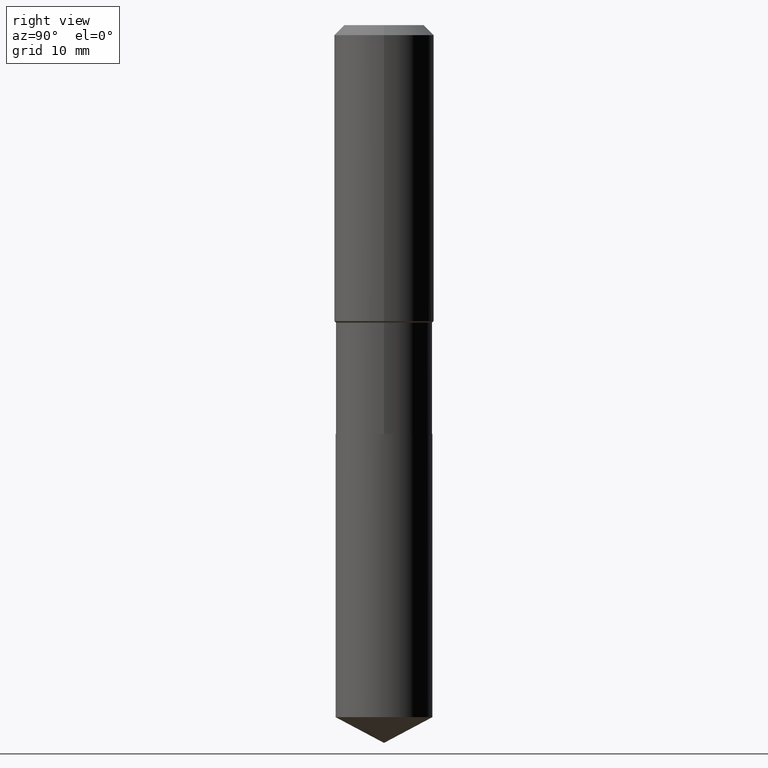
[diagram: clean part render]
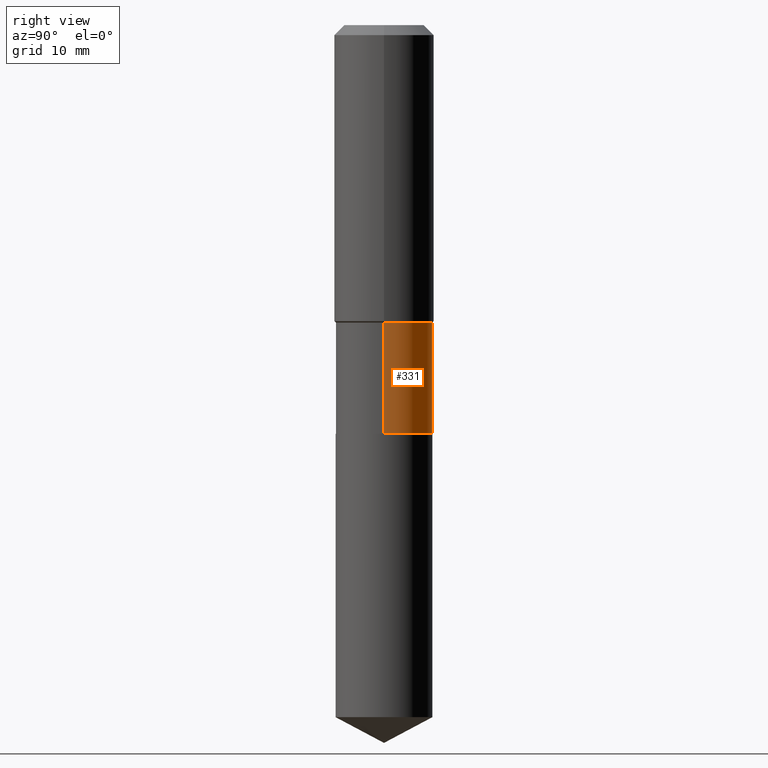
[diagram: same view with one face highlighted and labeled with its STEP entity id]
A machine part, right view. The second image highlights one B-rep face of the part: STEP entity #331.
In plain terms, the highlighted cylindrical surface (partial cylindrical patch) has radius 7.7495 mm, axis along (-0, 0, 1).
Its self-contained STEP definition (entity closure, byte-faithful):
#8 = CARTESIAN_POINT ( 'NONE',  ( 0.3050999999999999268, -2.130501912962079080E-15, 1.487721534295339594E-29 ) ) ;
#11 = CARTESIAN_POINT ( 'NONE',  ( -0.3050999999999999823, -5.609757943602922842E-15, -2.578199999999999381 ) ) ;
#19 = VERTEX_POINT ( 'NONE', #112 ) ;
#22 = DIRECTION ( 'NONE',  ( 1.000000000000000000, -6.982962677686266711E-15, 0.000000000000000000 ) ) ;
#53 = CARTESIAN_POINT ( 'NONE',  ( -0.3050999999999999268, -5.609757943602924419E-15, -1.876999999999999780 ) ) ;
#74 = ORIENTED_EDGE ( 'NONE', *, *, #445, .T. ) ;
#97 = DIRECTION ( 'NONE',  ( -2.445468806185136877E-29, 3.491481338843145188E-15, 1.000000000000000000 ) ) ;
#99 = DIRECTION ( 'NONE',  ( -2.445468806185136597E-29, 3.491481338843145583E-15, 1.000000000000000000 ) ) ;
#101 = DIRECTION ( 'NONE',  ( 1.000000000000000000, -6.982962677686265133E-15, 4.876176775795935793E-29 ) ) ;
#102 = AXIS2_PLACEMENT_3D ( 'NONE', #195, #99, #22 ) ;
#112 = CARTESIAN_POINT ( 'NONE',  ( 0.3050999999999999268, -1.113223910076747310E-14, -2.578199999999999381 ) ) ;
#119 = EDGE_CURVE ( 'NONE', #377, #410, #418, .T. ) ;
#127 = EDGE_CURVE ( 'NONE', #19, #377, #433, .T. ) ;
#129 = CARTESIAN_POINT ( 'NONE',  ( 0.000000000000000000, 0.000000000000000000, 0.000000000000000000 ) ) ;
#168 = CARTESIAN_POINT ( 'NONE',  ( -0.3050999999999999268, 2.167865886804065147E-15, -1.500767096036771338E-29 ) ) ;
#195 = CARTESIAN_POINT ( 'NONE',  ( 4.590144949209500643E-29, -6.553510473008583144E-15, -1.876999999999999780 ) ) ;
#208 = EDGE_CURVE ( 'NONE', #19, #290, #371, .T. ) ;
#239 = ORIENTED_EDGE ( 'NONE', *, *, #119, .F. ) ;
#249 = DIRECTION ( 'NONE',  ( 1.000000000000000000, -6.982962677686264344E-15, 0.000000000000000000 ) ) ;
#258 = AXIS2_PLACEMENT_3D ( 'NONE', #279, #310, #249 ) ;
#268 = VECTOR ( 'NONE', #471, 39.37007874015748143 ) ;
#279 = CARTESIAN_POINT ( 'NONE',  ( 6.304907676106516855E-29, -9.001737187805394412E-15, -2.578199999999999381 ) ) ;
#290 = VERTEX_POINT ( 'NONE', #11 ) ;
#310 = DIRECTION ( 'NONE',  ( -2.445468806185136597E-29, 3.491481338843145583E-15, 1.000000000000000000 ) ) ;
#320 = FACE_OUTER_BOUND ( 'NONE', #351, .T. ) ;
#324 = LINE ( 'NONE', #168, #268 ) ;
#331 = ADVANCED_FACE ( 'NONE', ( #320 ), #396, .T. ) ;
#351 = EDGE_LOOP ( 'NONE', ( #399, #74, #239, #417 ) ) ;
#371 = CIRCLE ( 'NONE', #258, 0.3050999999999999268 ) ;
#372 = VECTOR ( 'NONE', #97, 39.37007874015748143 ) ;
#373 = AXIS2_PLACEMENT_3D ( 'NONE', #129, #392, #101 ) ;
#377 = VERTEX_POINT ( 'NONE', #481 ) ;
#392 = DIRECTION ( 'NONE',  ( -2.445468806185136597E-29, 3.491481338843145583E-15, 1.000000000000000000 ) ) ;
#396 = CYLINDRICAL_SURFACE ( 'NONE', #373, 0.3050999999999999268 ) ;
#399 = ORIENTED_EDGE ( 'NONE', *, *, #208, .T. ) ;
#410 = VERTEX_POINT ( 'NONE', #53 ) ;
#417 = ORIENTED_EDGE ( 'NONE', *, *, #127, .F. ) ;
#418 = CIRCLE ( 'NONE', #102, 0.3050999999999999268 ) ;
#433 = LINE ( 'NONE', #8, #372 ) ;
#445 = EDGE_CURVE ( 'NONE', #290, #410, #324, .T. ) ;
#471 = DIRECTION ( 'NONE',  ( -2.445468806185136877E-29, 3.491481338843145188E-15, 1.000000000000000000 ) ) ;
#481 = CARTESIAN_POINT ( 'NONE',  ( 0.3050999999999999268, -8.684012385970661829E-15, -1.876999999999999780 ) ) ;